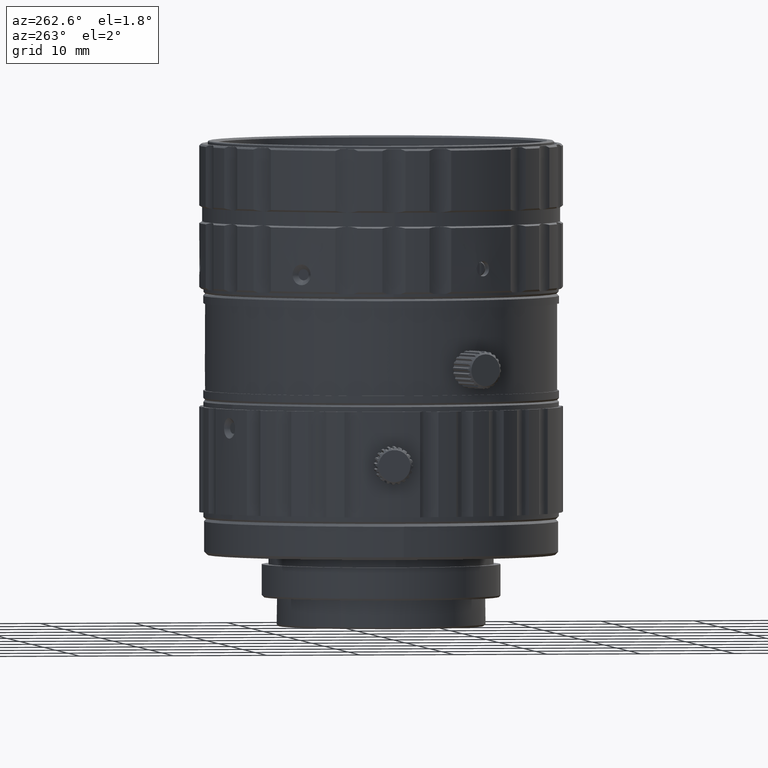
[diagram: clean part render]
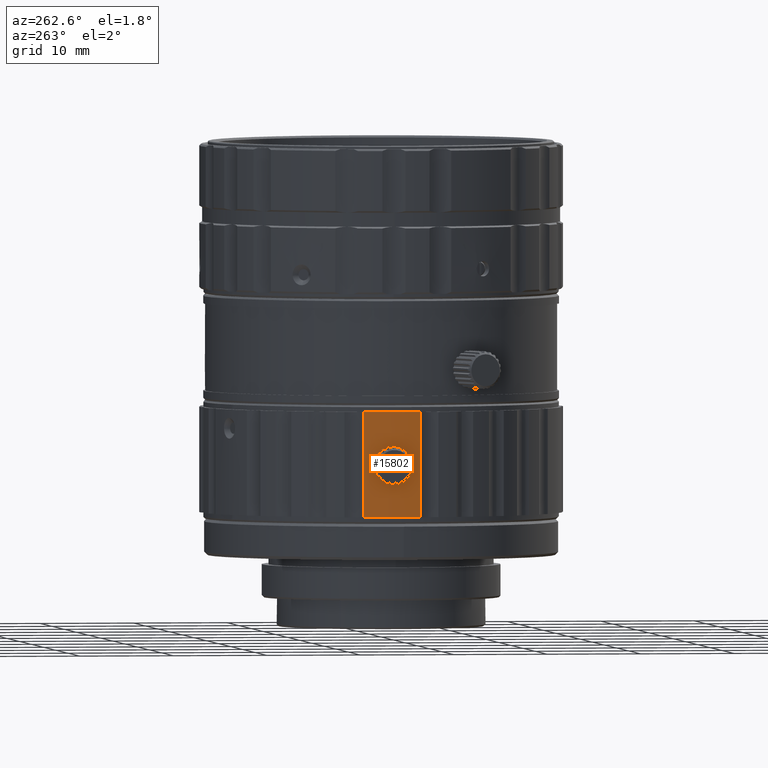
[diagram: same view with one face highlighted and labeled with its STEP entity id]
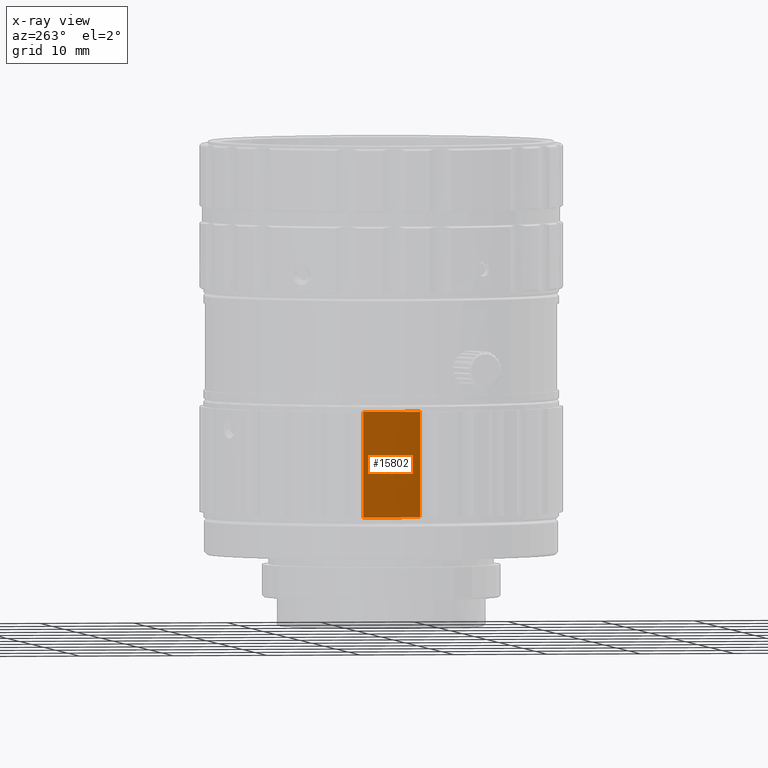
[diagram: x-ray of the same camera — body ghosted, the highlighted face saturated]
A machine part, auxiliary view. The second image highlights one B-rep face of the part: STEP entity #15802.
The next image is the same camera in x-ray: the body ghosted, the highlighted face saturated — about 0% of this face is hidden behind the body in this view.
In plain terms, the highlighted cylindrical surface (partial cylindrical patch) has radius 19.3 mm, axis along (0, 0, 1).
Its self-contained STEP definition (entity closure, byte-faithful):
#674 = CARTESIAN_POINT ( 'NONE',  ( -19.17132413444352679, 2.224984103409878511, 8.870802799750942214 ) ) ;
#2339 = CARTESIAN_POINT ( 'NONE',  ( -19.21305497117653260, 1.829820021163113042, 7.525551537552925829 ) ) ;
#2587 = CARTESIAN_POINT ( 'NONE',  ( -19.21478762757820746, 1.811550673399346278, 7.515616604406803347 ) ) ;
#2702 = CARTESIAN_POINT ( 'NONE',  ( -19.29322595140541452, 0.5285562268933204910, 8.998844020611612038 ) ) ;
#2831 = CARTESIAN_POINT ( 'NONE',  ( -19.29345809356928143, 0.5062373045585151221, 7.857445389983612749 ) ) ;
#2859 = ORIENTED_EDGE ( 'NONE', *, *, #12777, .T. ) ;
#2952 = CARTESIAN_POINT ( 'NONE',  ( -19.17328878825021832, 2.208191370958485500, 8.901292862108190818 ) ) ;
#3084 = CARTESIAN_POINT ( 'NONE',  ( -19.28650261950107492, 0.7216892661952541976, 7.619685394095089492 ) ) ;
#3211 = CARTESIAN_POINT ( 'NONE',  ( -19.18071112535295342, 2.144158150437443844, 9.004697909793740962 ) ) ;
#3333 = CARTESIAN_POINT ( 'NONE',  ( -19.16899634556574483, 2.246691279581987555, 7.967108141897665696 ) ) ;
#3706 = CARTESIAN_POINT ( 'NONE',  ( -19.20050363222118506, 1.957405715491331799, 9.190845005716177241 ) ) ;
#3899 = DIRECTION ( 'NONE',  ( -0.9961928503077767116, -0.08717686043708797183, 0.000000000000000000 ) ) ;
#4151 = VECTOR ( 'NONE', #8384, 1000.000000000000000 ) ;
#6141 = CARTESIAN_POINT ( 'NONE',  ( -19.24437035609776814, 1.464511305512331996, 7.406678928136251727 ) ) ;
#6393 = CARTESIAN_POINT ( 'NONE',  ( -19.29418227921527418, 0.4740884085652884994, 7.912199257069712388 ) ) ;
#6636 = CARTESIAN_POINT ( 'NONE',  ( -19.29518148566600289, 0.4320439010837656690, 7.995059128165824092 ) ) ;
#6881 = CARTESIAN_POINT ( 'NONE',  ( -19.24838069429592480, 1.410673518606216703, 7.401716657601198790 ) ) ;
#7140 = CARTESIAN_POINT ( 'NONE',  ( -19.15739614853438155, 2.342124506771230852, 8.400000261679210212 ) ) ;
#7266 = CARTESIAN_POINT ( 'NONE',  ( -19.26144022920292187, 1.218732828948398295, 9.392141339787553278 ) ) ;
#7512 = CARTESIAN_POINT ( 'NONE',  ( -19.25760037931569713, 1.278626352547754141, 9.397766464793971153 ) ) ;
#7765 = CARTESIAN_POINT ( 'NONE',  ( -19.15808325159632730, 2.336158513658107339, 8.512202591086007075 ) ) ;
#8384 = DIRECTION ( 'NONE',  ( 0.000000000000000000, 0.000000000000000000, 1.000000000000000000 ) ) ;
#8531 = EDGE_LOOP ( 'NONE', ( #38940, #42465 ) ) ;
#9528 = CARTESIAN_POINT ( 'NONE',  ( -18.80525021221009752, 4.341953990569970223, 14.00000000000000000 ) ) ;
#10194 = CARTESIAN_POINT ( 'NONE',  ( -19.29399442204998749, 0.4825344398172546900, 7.897319450590944534 ) ) ;
#10441 = CARTESIAN_POINT ( 'NONE',  ( -19.15756315756775052, 2.342069231759381864, 8.285307375036698119 ) ) ;
#10683 = CARTESIAN_POINT ( 'NONE',  ( -19.20289219516336132, 1.933242226094580740, 7.587621089131324048 ) ) ;
#10806 = CARTESIAN_POINT ( 'NONE',  ( -19.29688600772575668, 0.3469315711289269188, 8.400000010275739726 ) ) ;
#10939 = CARTESIAN_POINT ( 'NONE',  ( -19.29425273787443729, 0.4710473871472556362, 7.917685814277068523 ) ) ;
#11045 = CARTESIAN_POINT ( 'NONE',  ( -1.569924745759019887E-15, 9.055256544599938830E-16, 2.799391213819999891 ) ) ;
#11060 = CARTESIAN_POINT ( 'NONE',  ( -19.29688424365594557, 0.3469276981052534237, 8.498566165981520371 ) ) ;
#11199 = CARTESIAN_POINT ( 'NONE',  ( -19.16018411018848155, 2.322283519969663423, 8.158545001581259726 ) ) ;
#11573 = CARTESIAN_POINT ( 'NONE',  ( -19.16051412867459547, 2.316337813540842117, 8.634447339308438885 ) ) ;
#12777 = EDGE_CURVE ( 'NONE', #21505, #32233, #25958, .T. ) ;
#13136 = EDGE_CURVE ( 'NONE', #21505, #25348, #18613, .T. ) ;
#13237 = VERTEX_POINT ( 'NONE', #41937 ) ;
#13729 = EDGE_CURVE ( 'NONE', #32233, #28498, #15251, .T. ) ;
#14009 = CARTESIAN_POINT ( 'NONE',  ( -19.21405626062682259, 1.819295744975674811, 7.519765389090873775 ) ) ;
#14251 = CARTESIAN_POINT ( 'NONE',  ( -19.29667145994469379, 0.3589343059972850414, 8.242567195538239133 ) ) ;
#14375 = CARTESIAN_POINT ( 'NONE',  ( -19.28485906722616150, 0.7712511144494982318, 9.234880046221919159 ) ) ;
#14497 = CARTESIAN_POINT ( 'NONE',  ( -19.18960398686212443, 2.061358962306963694, 7.701650498676078982 ) ) ;
#14542 = EDGE_LOOP ( 'NONE', ( #32589, #36372, #17598, #2859 ) ) ;
#14548 = DIRECTION ( 'NONE',  ( 9.263126512906250492E-15, 2.586870974245899924E-14, 1.000000000000000000 ) ) ;
#14740 = CARTESIAN_POINT ( 'NONE',  ( -19.18486432073133940, 2.104986440886572829, 7.751804252794630479 ) ) ;
#14867 = CARTESIAN_POINT ( 'NONE',  ( -19.25989214002600036, 1.243454623618411858, 9.394952697319506996 ) ) ;
#14995 = CARTESIAN_POINT ( 'NONE',  ( -19.28637343214659694, 0.7251275434431716516, 7.616958919638279646 ) ) ;
#15251 = LINE ( 'NONE', #42879, #4151 ) ;
#15410 = AXIS2_PLACEMENT_3D ( 'NONE', #43308, #24050, #31159 ) ;
#15802 = ADVANCED_FACE ( 'NONE', ( #23555, #27604 ), #39281, .T. ) ;
#15876 = CARTESIAN_POINT ( 'NONE',  ( -19.17075473854615097, 2.229886007803220327, 8.861448426469364037 ) ) ;
#16380 = CARTESIAN_POINT ( 'NONE',  ( -19.16257933825921356, 2.299361218488213954, 8.697911474961516731 ) ) ;
#17598 = ORIENTED_EDGE ( 'NONE', *, *, #13136, .F. ) ;
#17816 = CARTESIAN_POINT ( 'NONE',  ( -19.19319042627376248, 2.027196270327376038, 7.668785588343363102 ) ) ;
#18059 = CARTESIAN_POINT ( 'NONE',  ( -19.22959382109686999, 1.647852678932755444, 7.444460866591937176 ) ) ;
#18182 = CARTESIAN_POINT ( 'NONE',  ( -19.25506688052714566, 1.316159640663390640, 9.399632513369502007 ) ) ;
#18312 = CARTESIAN_POINT ( 'NONE',  ( -19.28085357086625606, 0.8592975325958303046, 7.523883589661909177 ) ) ;
#18562 = CARTESIAN_POINT ( 'NONE',  ( -19.21327481920101476, 1.827525395018234189, 7.524279296114595006 ) ) ;
#18613 = LINE ( 'NONE', #34071, #27629 ) ;
#18810 = CARTESIAN_POINT ( 'NONE',  ( -19.27780918770783103, 0.9232421992557265922, 7.491644941599667540 ) ) ;
#19704 = CARTESIAN_POINT ( 'NONE',  ( -19.17099483364667734, 2.227820013027285384, 8.865421204247635245 ) ) ;
#20035 = CARTESIAN_POINT ( 'NONE',  ( -19.15739614853438155, 2.342124506771230852, 8.400000261679210212 ) ) ;
#21505 = VERTEX_POINT ( 'NONE', #23183 ) ;
#21531 = EDGE_CURVE ( 'NONE', #28498, #25348, #49244, .T. ) ;
#21614 = CARTESIAN_POINT ( 'NONE',  ( -19.24202340687831381, 1.494976323802638341, 7.410694885843702728 ) ) ;
#21870 = CARTESIAN_POINT ( 'NONE',  ( -19.29421256160853204, 0.4727573480399769879, 7.914591223366335804 ) ) ;
#21995 = CARTESIAN_POINT ( 'NONE',  ( -19.26930217290260217, 1.084526706984558331, 9.367061643277221350 ) ) ;
#22120 = CARTESIAN_POINT ( 'NONE',  ( -19.29683369476509824, 0.3501139406688418831, 8.318633133417741021 ) ) ;
#22235 = CARTESIAN_POINT ( 'NONE',  ( -19.19078857184812748, 2.050617011089603370, 9.107975968866899308 ) ) ;
#22490 = CARTESIAN_POINT ( 'NONE',  ( -19.21868593789255186, 1.768433389293437186, 9.308485079760320247 ) ) ;
#22990 = CARTESIAN_POINT ( 'NONE',  ( -19.24541379504916705, 1.453210992341167129, 9.400315375583661037 ) ) ;
#23112 = CARTESIAN_POINT ( 'NONE',  ( -19.29689088985919554, 0.3469281622293561851, 8.393910153598223900 ) ) ;
#23183 = CARTESIAN_POINT ( 'NONE',  ( -18.80525021221009752, 4.341953990569970223, 2.799391213819999891 ) ) ;
#23555 = FACE_BOUND ( 'NONE', #8531, .T. ) ;
#23749 = CARTESIAN_POINT ( 'NONE',  ( -19.16872870830429676, 2.247310670628093643, 8.827665346855773976 ) ) ;
#24050 = DIRECTION ( 'NONE',  ( 0.000000000000000000, 0.000000000000000000, 1.000000000000000000 ) ) ;
#24497 = CARTESIAN_POINT ( 'NONE',  ( -19.22652201093919899, -1.682513406436130010, 2.799391213819999891 ) ) ;
#25348 = VERTEX_POINT ( 'NONE', #9528 ) ;
#25675 = CARTESIAN_POINT ( 'NONE',  ( -19.25037303154395119, 1.382941434156055971, 7.400267855319182075 ) ) ;
#25927 = CARTESIAN_POINT ( 'NONE',  ( -19.29480291884532406, 0.4484562387344580570, 7.959531782302195602 ) ) ;
#25958 = CIRCLE ( 'NONE', #26752, 19.30000000000000071 ) ;
#26053 = CARTESIAN_POINT ( 'NONE',  ( -19.19662988225492839, 1.994851543621346535, 9.159224560675456317 ) ) ;
#26173 = CARTESIAN_POINT ( 'NONE',  ( -19.17851835262047544, 2.162274663756190485, 7.826165012331208537 ) ) ;
#26296 = CARTESIAN_POINT ( 'NONE',  ( -19.18831740657319784, 2.073731050139600018, 9.083594112556562905 ) ) ;
#26427 = CARTESIAN_POINT ( 'NONE',  ( -19.29423526791183718, 0.4717533391861589154, 7.916387562722388083 ) ) ;
#26536 = DIRECTION ( 'NONE',  ( 0.000000000000000000, 0.000000000000000000, 1.000000000000000000 ) ) ;
#26676 = CARTESIAN_POINT ( 'NONE',  ( -19.18162586318657148, 2.134327977950482680, 7.788276935224638819 ) ) ;
#26752 = AXIS2_PLACEMENT_3D ( 'NONE', #11045, #26536, #30331 ) ;
#27553 = CARTESIAN_POINT ( 'NONE',  ( -19.17162134378266103, 2.222430725607034585, 8.875605960490078772 ) ) ;
#27604 = FACE_OUTER_BOUND ( 'NONE', #14542, .T. ) ;
#27629 = VECTOR ( 'NONE', #14548, 1000.000000000000000 ) ;
#27793 = CARTESIAN_POINT ( 'NONE',  ( -19.16695368165636282, 2.262421564283968234, 8.793664956209910954 ) ) ;
#28048 = CARTESIAN_POINT ( 'NONE',  ( -19.17118288656936542, 2.226200643619682840, 8.868500582778501951 ) ) ;
#28498 = VERTEX_POINT ( 'NONE', #48243 ) ;
#29487 = CARTESIAN_POINT ( 'NONE',  ( -19.23482243092393063, 1.585619808873734327, 7.427274620202303446 ) ) ;
#29591 = B_SPLINE_CURVE_WITH_KNOTS ( 'NONE', 3,
 ( #7140, #10441, #11199, #3333, #38100, #26173, #37090, #26676, #49475, #37842, #49720, #14740, #14497, #17816, #10683, #37341, #45424, #33275, #2339, #18562, #45927, #14009, #2587, #41628, #48981, #18059, #29487, #21614, #6141, #6881, #25675, #34274, #48735, #18810, #18312, #37582, #44927, #29985, #14995, #3084, #34019, #30227, #33517, #45669, #41388, #2831, #10194, #41144, #6393, #21870, #10939, #26427, #45176, #25927, #6636, #30478, #41886, #14251, #29733, #22120, #33768, #49229, #46673, #23112, #31226 ),
 .UNSPECIFIED., .F., .F.,
 ( 4, 2, 2, 1, 2, 2, 2, 2, 2, 2, 2, 2, 1, 2, 2, 2, 2, 2, 2, 1, 2, 2, 2, 2, 2, 2, 2, 2, 1, 2, 2, 2, 1, 2, 4 ),
 ( 0.02016703739035713427, 0.08230718387549468273, 0.1133772571180635125, 0.1211447754287054285, 0.1230866550063659942, 0.1250285345840265738, 0.1289122937393477331, 0.1444473303606329528, 0.1755174036032035867, 0.1832849219138459884, 0.1871686810691672032, 0.1891105606468284073, 0.1910524402244896114, 0.2065874768457785227, 0.2376575500883561787, 0.2531925867096451177, 0.2687276233309340290, 0.3308677698160901182, 0.3619378430586681072, 0.3697053613693125351, 0.3735891205246346658, 0.3755310001022956756, 0.3774728796799566855, 0.3930079163012452081, 0.4240779895438215874, 0.4318455078544660153, 0.4357292670097892007, 0.4376711465874519869, 0.4396130261651147730, 0.4551480627864137873, 0.4862181360290118159, 0.5017531726503108302, 0.5095206909609599766, 0.5134044501162848828, 0.5172882092716097890 ),
 .UNSPECIFIED. ) ;
#29733 = CARTESIAN_POINT ( 'NONE',  ( -19.29674317819926088, 0.3549017192597626602, 8.269876405817655041 ) ) ;
#29861 = CARTESIAN_POINT ( 'NONE',  ( -19.20359130676827775, 1.926603023986886987, 9.213819419037895031 ) ) ;
#29985 = CARTESIAN_POINT ( 'NONE',  ( -19.28594714691400114, 0.7363583608351182974, 7.608123074133056107 ) ) ;
#30029 = VERTEX_POINT ( 'NONE', #20035 ) ;
#30105 = CARTESIAN_POINT ( 'NONE',  ( -19.23553781023551679, 1.577319353229856391, 9.382399819563671528 ) ) ;
#30227 = CARTESIAN_POINT ( 'NONE',  ( -19.28710924926459569, 0.7053546281734736079, 7.633067201488564102 ) ) ;
#30331 = DIRECTION ( 'NONE',  ( -0.9743652959693299698, 0.2249717093560879566, 0.000000000000000000 ) ) ;
#30478 = CARTESIAN_POINT ( 'NONE',  ( -19.29602236002599724, 0.3939905603035752657, 8.089495582059088363 ) ) ;
#30606 = CARTESIAN_POINT ( 'NONE',  ( -19.25687327683358774, 1.289568219745755417, 9.398470999364755940 ) ) ;
#30859 = CARTESIAN_POINT ( 'NONE',  ( -19.15739614853438155, 2.342124506771230852, 8.400000261679210212 ) ) ;
#31107 = CARTESIAN_POINT ( 'NONE',  ( -19.15854648618216416, 2.332420949046772662, 8.542352478925815618 ) ) ;
#31159 = DIRECTION ( 'NONE',  ( -0.4383711467890308855, 0.8987940462991896862, 0.000000000000000000 ) ) ;
#31226 = CARTESIAN_POINT ( 'NONE',  ( -19.29688600772575668, 0.3469315711289269188, 8.400000010275739726 ) ) ;
#31690 = EDGE_CURVE ( 'NONE', #30029, #13237, #29591, .T. ) ;
#31915 = B_SPLINE_CURVE_WITH_KNOTS ( 'NONE', 3,
 ( #10806, #11060, #42011, #41267, #2702, #14375, #34148, #21995, #38222, #7266, #14867, #7512, #30606, #18182, #46055, #22990, #30105, #22490, #33641, #29861, #3706, #26053, #41509, #37970, #22235, #26296, #3211, #37712, #2952, #33899, #49356, #27553, #674, #28048, #19704, #15876, #23749, #27793, #16380, #11573, #31107, #7765, #43248, #42765, #30859 ),
 .UNSPECIFIED., .F., .F.,
 ( 4, 2, 2, 2, 2, 2, 2, 2, 2, 2, 2, 2, 1, 2, 2, 2, 1, 2, 2, 1, 2, 2, 2, 4 ),
 ( 0.5172882092716097890, 0.5801480627864650241, 0.6430079163013203702, 0.7058677698161756053, 0.7372976965736034449, 0.7530126599523172537, 0.7608701416416741026, 0.7687276233310309514, 0.8315874768458852984, 0.8630174036033122498, 0.8787323669820257255, 0.8826611078267043720, 0.8865898486713830184, 0.8944473303607400894, 0.9258772571181689282, 0.9337347388075267762, 0.9376634796522052007, 0.9396278500745441908, 0.9406100352857127422, 0.9415922204968810716, 0.9573071838755765617, 0.9887371106329668757, 1.004452074011662033, 1.020167037390357079 ),
 .UNSPECIFIED. ) ;
#32233 = VERTEX_POINT ( 'NONE', #24497 ) ;
#32589 = ORIENTED_EDGE ( 'NONE', *, *, #13729, .T. ) ;
#33275 = CARTESIAN_POINT ( 'NONE',  ( -19.21230076802835285, 1.837645735649966028, 7.529942605070396588 ) ) ;
#33517 = CARTESIAN_POINT ( 'NONE',  ( -19.28884092594350008, 0.6581411873923967981, 7.673135562178546643 ) ) ;
#33641 = CARTESIAN_POINT ( 'NONE',  ( -19.21274087892487969, 1.832793410881540463, 9.276018194806416872 ) ) ;
#33768 = CARTESIAN_POINT ( 'NONE',  ( -19.29686711206002414, 0.3483204867517847858, 8.343044347651398240 ) ) ;
#33899 = CARTESIAN_POINT ( 'NONE',  ( -19.17270922164493641, 2.213135606649914155, 8.892558503708730910 ) ) ;
#34019 = CARTESIAN_POINT ( 'NONE',  ( -19.28691103350751845, 0.7107188783433810997, 7.628607797535940094 ) ) ;
#34071 = CARTESIAN_POINT ( 'NONE',  ( -18.80525021221009752, 4.341953990569970223, 2.799391213819999891 ) ) ;
#34148 = CARTESIAN_POINT ( 'NONE',  ( -19.27869186104449284, 0.9052172194893333135, 9.305977049569293058 ) ) ;
#34274 = CARTESIAN_POINT ( 'NONE',  ( -19.26023991711560512, 1.240653249543752334, 7.399097032130089069 ) ) ;
#34339 = CARTESIAN_POINT ( 'NONE',  ( -1.569924745759019887E-15, 9.055256544599938830E-16, 14.00000000000000000 ) ) ;
#36372 = ORIENTED_EDGE ( 'NONE', *, *, #21531, .T. ) ;
#37090 = CARTESIAN_POINT ( 'NONE',  ( -19.18002940010261526, 2.148717693326876788, 7.807077356743741703 ) ) ;
#37341 = CARTESIAN_POINT ( 'NONE',  ( -19.20791227944294732, 1.882523981361049259, 7.556334609561789151 ) ) ;
#37582 = CARTESIAN_POINT ( 'NONE',  ( -19.28412876713130331, 0.7819666198593497874, 7.574790918576216114 ) ) ;
#37712 = CARTESIAN_POINT ( 'NONE',  ( -19.17663136280902236, 2.179513206094177757, 8.949809159813971959 ) ) ;
#37842 = CARTESIAN_POINT ( 'NONE',  ( -19.18244882784944494, 2.126904010262411049, 7.778723539589244673 ) ) ;
#37970 = CARTESIAN_POINT ( 'NONE',  ( -19.19356645155896857, 2.024198152473693391, 9.132954438409324638 ) ) ;
#38100 = CARTESIAN_POINT ( 'NONE',  ( -19.17274505187000599, 2.213872665961011510, 7.903227236038121717 ) ) ;
#38222 = CARTESIAN_POINT ( 'NONE',  ( -19.26612345318588737, 1.141057125413575957, 9.380030872899318695 ) ) ;
#38940 = ORIENTED_EDGE ( 'NONE', *, *, #40094, .F. ) ;
#39281 = CYLINDRICAL_SURFACE ( 'NONE', #15410, 19.30000000000000782 ) ;
#40094 = EDGE_CURVE ( 'NONE', #13237, #30029, #31915, .T. ) ;
#41144 = CARTESIAN_POINT ( 'NONE',  ( -19.29407923517372936, 0.4786791927235333755, 7.904050562016848858 ) ) ;
#41267 = CARTESIAN_POINT ( 'NONE',  ( -19.29508316624734476, 0.4520733452016881815, 8.865506287891012249 ) ) ;
#41388 = CARTESIAN_POINT ( 'NONE',  ( -19.29270284201938779, 0.5388921387817271480, 7.804895298717206664 ) ) ;
#41509 = CARTESIAN_POINT ( 'NONE',  ( -19.19548892713771338, 2.005816896903905189, 9.149676940426157756 ) ) ;
#41628 = CARTESIAN_POINT ( 'NONE',  ( -19.21807069250227684, 1.776661749437176807, 7.497225286256456123 ) ) ;
#41886 = CARTESIAN_POINT ( 'NONE',  ( -19.29635712637372791, 0.3762526859418004466, 8.152006660657839632 ) ) ;
#41937 = CARTESIAN_POINT ( 'NONE',  ( -19.29688600772575668, 0.3469315711289269188, 8.400000010275739726 ) ) ;
#42011 = CARTESIAN_POINT ( 'NONE',  ( -19.29697883239382605, 0.3614168435084728070, 8.615359605609416604 ) ) ;
#42465 = ORIENTED_EDGE ( 'NONE', *, *, #31690, .F. ) ;
#42765 = CARTESIAN_POINT ( 'NONE',  ( -19.15740864610535965, 2.342058405382511754, 8.429005438999627842 ) ) ;
#42879 = CARTESIAN_POINT ( 'NONE',  ( -19.22652201093960045, -1.682513406435239833, 2.799391213819999891 ) ) ;
#43248 = CARTESIAN_POINT ( 'NONE',  ( -19.15753634518693360, 2.340802429133323592, 8.457284535274416370 ) ) ;
#43308 = CARTESIAN_POINT ( 'NONE',  ( -1.569924745759019887E-15, 9.055256544599938830E-16, -0.5250000000000000222 ) ) ;
#44927 = CARTESIAN_POINT ( 'NONE',  ( -19.28507125051993754, 0.7589666916274822039, 7.590854730834697861 ) ) ;
#45176 = CARTESIAN_POINT ( 'NONE',  ( -19.29434019783848697, 0.4674647602531775692, 7.924226348877934534 ) ) ;
#45192 = AXIS2_PLACEMENT_3D ( 'NONE', #34339, #49790, #3899 ) ;
#45424 = CARTESIAN_POINT ( 'NONE',  ( -19.21167165100466079, 1.844120130514658840, 7.533633802246102462 ) ) ;
#45669 = CARTESIAN_POINT ( 'NONE',  ( -19.29000742475225394, 0.6237614909849263922, 7.708199503615378312 ) ) ;
#45927 = CARTESIAN_POINT ( 'NONE',  ( -19.21355681158538076, 1.824560810771752362, 7.522646702727009860 ) ) ;
#46055 = CARTESIAN_POINT ( 'NONE',  ( -19.25413064263442209, 1.329675843876006569, 9.399955837020293359 ) ) ;
#46673 = CARTESIAN_POINT ( 'NONE',  ( -19.29688961807698533, 0.3470274823455273827, 8.383734331045873844 ) ) ;
#48243 = CARTESIAN_POINT ( 'NONE',  ( -19.22652201093919899, -1.682513406436130010, 14.00000000000000000 ) ) ;
#48735 = CARTESIAN_POINT ( 'NONE',  ( -19.26787994987565256, 1.114500452940581976, 7.417772685360518814 ) ) ;
#48981 = CARTESIAN_POINT ( 'NONE',  ( -19.22127740464411261, 1.741499041657521341, 7.481326232351841909 ) ) ;
#49229 = CARTESIAN_POINT ( 'NONE',  ( -19.29688294000684579, 0.3474252242732808749, 8.367460590417261201 ) ) ;
#49244 = CIRCLE ( 'NONE', #45192, 19.30000000000000782 ) ;
#49356 = CARTESIAN_POINT ( 'NONE',  ( -19.17196336534891188, 2.219506853404455526, 8.880999953591016904 ) ) ;
#49475 = CARTESIAN_POINT ( 'NONE',  ( -19.18227128949839511, 2.128505360228436061, 7.780781118069876712 ) ) ;
#49720 = CARTESIAN_POINT ( 'NONE',  ( -19.18390386777171486, 2.113753693204672768, 7.762287976720855909 ) ) ;
#49790 = DIRECTION ( 'NONE',  ( 0.000000000000000000, 0.000000000000000000, -1.000000000000000000 ) ) ;